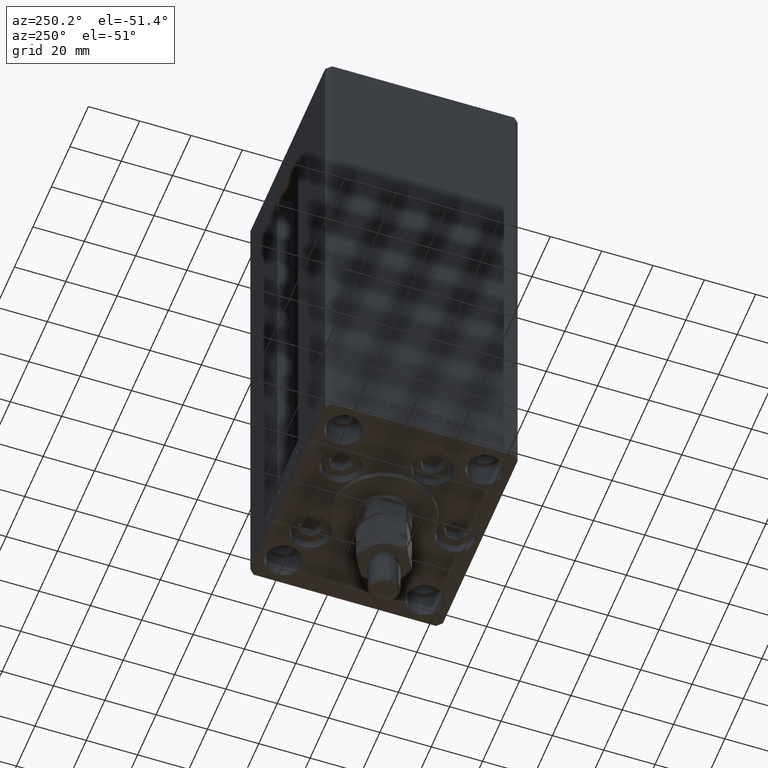
[diagram: clean part render]
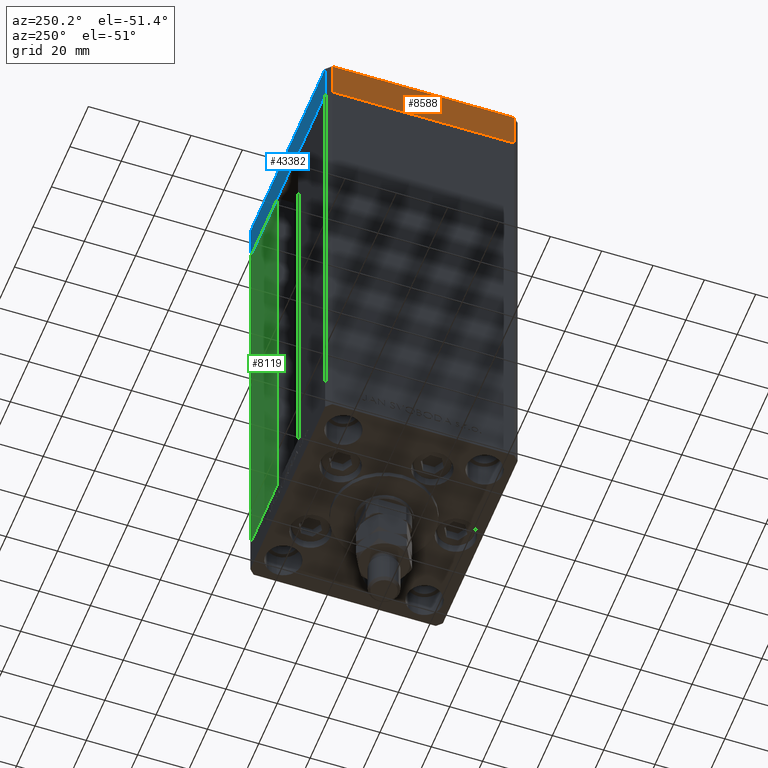
[diagram: same view with three faces highlighted in distinct colors, each labeled with its STEP entity id]
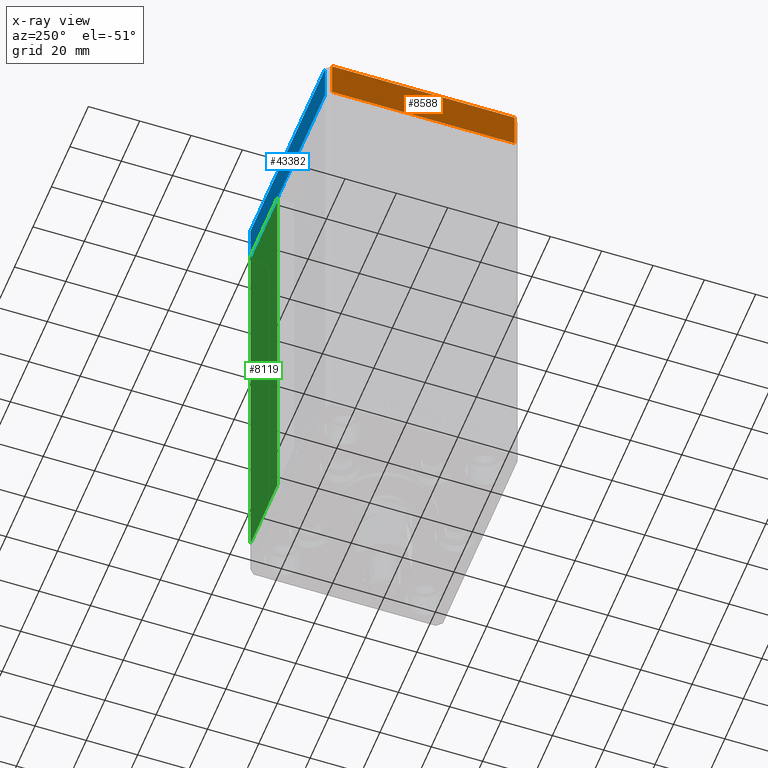
[diagram: x-ray of the same camera — body ghosted, the three highlighted faces saturated]
A machine part, auxiliary view with three faces highlighted in distinct colors.
The next image is the same camera in x-ray (body ghosted, the three faces saturated) — at least one of them is partly hidden behind the body in this view.
Their STEP definitions:

[orange] entity #8588 — the highlighted planar face has unit normal (-1, -0, 0).
#39 = VECTOR ( 'NONE', #34601, 1000.000000000000000 ) ;
#546 = CARTESIAN_POINT ( 'NONE',  ( -42.50000000000000711, 35.49999999999997158, -15.00000000000000000 ) ) ;
#1055 = FACE_OUTER_BOUND ( 'NONE', #21309, .T. ) ;
#1558 = DIRECTION ( 'NONE',  ( 9.773090005503140331E-17, -1.000000000000000000, 0.000000000000000000 ) ) ;
#1777 = CARTESIAN_POINT ( 'NONE',  ( -42.50000000000000000, -35.50000000000000711, 0.000000000000000000 ) ) ;
#2702 = VERTEX_POINT ( 'NONE', #1777 ) ;
#2773 = EDGE_CURVE ( 'NONE', #4040, #2702, #22680, .T. ) ;
#4040 = VERTEX_POINT ( 'NONE', #31318 ) ;
#4749 = EDGE_CURVE ( 'NONE', #29766, #4040, #41495, .T. ) ;
#7673 = VECTOR ( 'NONE', #45445, 1000.000000000000000 ) ;
#8588 = ADVANCED_FACE ( 'NONE', ( #1055 ), #47546, .T. ) ;
#8943 = ORIENTED_EDGE ( 'NONE', *, *, #2773, .F. ) ;
#14240 = DIRECTION ( 'NONE',  ( 0.000000000000000000, 0.000000000000000000, 1.000000000000000000 ) ) ;
#17575 = CARTESIAN_POINT ( 'NONE',  ( -42.50000000000000000, -35.50000000000000711, -15.00000000000000000 ) ) ;
#17828 = LINE ( 'NONE', #17575, #26576 ) ;
#17860 = ORIENTED_EDGE ( 'NONE', *, *, #28439, .T. ) ;
#20284 = ORIENTED_EDGE ( 'NONE', *, *, #4749, .F. ) ;
#21309 = EDGE_LOOP ( 'NONE', ( #8943, #20284, #47860, #17860 ) ) ;
#21537 = EDGE_CURVE ( 'NONE', #29766, #39985, #26692, .T. ) ;
#22680 = LINE ( 'NONE', #38030, #7673 ) ;
#26576 = VECTOR ( 'NONE', #14240, 1000.000000000000000 ) ;
#26692 = LINE ( 'NONE', #50188, #39 ) ;
#28439 = EDGE_CURVE ( 'NONE', #39985, #2702, #17828, .T. ) ;
#29347 = CARTESIAN_POINT ( 'NONE',  ( -42.50000000000000711, 35.49999999999997158, -15.00000000000000000 ) ) ;
#29766 = VERTEX_POINT ( 'NONE', #29347 ) ;
#31318 = CARTESIAN_POINT ( 'NONE',  ( -42.50000000000000711, 35.49999999999997158, 0.000000000000000000 ) ) ;
#34601 = DIRECTION ( 'NONE',  ( 9.773090005503140331E-17, -1.000000000000000000, 0.000000000000000000 ) ) ;
#38004 = AXIS2_PLACEMENT_3D ( 'NONE', #546, #40387, #1558 ) ;
#38030 = CARTESIAN_POINT ( 'NONE',  ( -42.50000000000000711, 35.49999999999997158, 0.000000000000000000 ) ) ;
#39985 = VERTEX_POINT ( 'NONE', #40768 ) ;
#40387 = DIRECTION ( 'NONE',  ( -1.000000000000000000, -9.773090005503140331E-17, 0.000000000000000000 ) ) ;
#40768 = CARTESIAN_POINT ( 'NONE',  ( -42.50000000000000000, -35.50000000000000711, -15.00000000000000000 ) ) ;
#41244 = DIRECTION ( 'NONE',  ( 0.000000000000000000, 0.000000000000000000, 1.000000000000000000 ) ) ;
#41495 = LINE ( 'NONE', #49423, #45343 ) ;
#45343 = VECTOR ( 'NONE', #41244, 1000.000000000000000 ) ;
#45445 = DIRECTION ( 'NONE',  ( 9.773090005503140331E-17, -1.000000000000000000, 0.000000000000000000 ) ) ;
#47546 = PLANE ( 'NONE',  #38004 ) ;
#47860 = ORIENTED_EDGE ( 'NONE', *, *, #21537, .T. ) ;
#49423 = CARTESIAN_POINT ( 'NONE',  ( -42.50000000000000711, 35.49999999999997158, -15.00000000000000000 ) ) ;
#50188 = CARTESIAN_POINT ( 'NONE',  ( -42.50000000000000711, 35.49999999999997158, -15.00000000000000000 ) ) ;

[blue] entity #43382 — the highlighted planar face has unit normal (-0, 1, 0).
#689 = FACE_OUTER_BOUND ( 'NONE', #47037, .T. ) ;
#1820 = DIRECTION ( 'NONE',  ( 0.000000000000000000, 0.000000000000000000, 1.000000000000000000 ) ) ;
#7057 = VECTOR ( 'NONE', #24320, 1000.000000000000000 ) ;
#8480 = VERTEX_POINT ( 'NONE', #25178 ) ;
#8871 = VECTOR ( 'NONE', #1820, 1000.000000000000000 ) ;
#9650 = ORIENTED_EDGE ( 'NONE', *, *, #14677, .T. ) ;
#10420 = VECTOR ( 'NONE', #36048, 1000.000000000000000 ) ;
#11312 = CARTESIAN_POINT ( 'NONE',  ( 40.49999999999991473, 37.50000000000000711, 0.000000000000000000 ) ) ;
#11580 = EDGE_CURVE ( 'NONE', #33855, #16186, #31497, .T. ) ;
#11666 = DIRECTION ( 'NONE',  ( -1.000000000000000000, -3.426614273534436165E-16, 0.000000000000000000 ) ) ;
#12164 = EDGE_CURVE ( 'NONE', #8480, #16186, #44892, .T. ) ;
#13209 = CARTESIAN_POINT ( 'NONE',  ( -40.50000000000000711, 37.49999999999997868, -15.00000000000000000 ) ) ;
#14677 = EDGE_CURVE ( 'NONE', #46117, #8480, #29411, .T. ) ;
#16186 = VERTEX_POINT ( 'NONE', #27659 ) ;
#20104 = CARTESIAN_POINT ( 'NONE',  ( 40.49999999999991473, 37.50000000000000711, -15.00000000000000000 ) ) ;
#20938 = ORIENTED_EDGE ( 'NONE', *, *, #12164, .T. ) ;
#24320 = DIRECTION ( 'NONE',  ( -1.000000000000000000, -3.426614273534436165E-16, 0.000000000000000000 ) ) ;
#25178 = CARTESIAN_POINT ( 'NONE',  ( -40.50000000000000711, 37.49999999999997868, -15.00000000000000000 ) ) ;
#25565 = LINE ( 'NONE', #36823, #8871 ) ;
#27659 = CARTESIAN_POINT ( 'NONE',  ( -40.50000000000000711, 37.49999999999997868, 0.000000000000000000 ) ) ;
#29411 = LINE ( 'NONE', #44459, #10420 ) ;
#31497 = LINE ( 'NONE', #43470, #7057 ) ;
#32674 = AXIS2_PLACEMENT_3D ( 'NONE', #20104, #35683, #11666 ) ;
#33855 = VERTEX_POINT ( 'NONE', #11312 ) ;
#35584 = EDGE_CURVE ( 'NONE', #46117, #33855, #25565, .T. ) ;
#35683 = DIRECTION ( 'NONE',  ( -3.426614273534436165E-16, 1.000000000000000000, 0.000000000000000000 ) ) ;
#36048 = DIRECTION ( 'NONE',  ( -1.000000000000000000, -3.426614273534436165E-16, 0.000000000000000000 ) ) ;
#36823 = CARTESIAN_POINT ( 'NONE',  ( 40.49999999999991473, 37.50000000000000711, -15.00000000000000000 ) ) ;
#37460 = ORIENTED_EDGE ( 'NONE', *, *, #35584, .F. ) ;
#39767 = PLANE ( 'NONE',  #32674 ) ;
#43382 = ADVANCED_FACE ( 'NONE', ( #689 ), #39767, .T. ) ;
#43470 = CARTESIAN_POINT ( 'NONE',  ( 40.49999999999991473, 37.50000000000000711, 0.000000000000000000 ) ) ;
#44459 = CARTESIAN_POINT ( 'NONE',  ( 40.49999999999991473, 37.50000000000000711, -15.00000000000000000 ) ) ;
#44892 = LINE ( 'NONE', #13209, #48741 ) ;
#45667 = CARTESIAN_POINT ( 'NONE',  ( 40.49999999999991473, 37.50000000000000711, -15.00000000000000000 ) ) ;
#46117 = VERTEX_POINT ( 'NONE', #45667 ) ;
#46601 = ORIENTED_EDGE ( 'NONE', *, *, #11580, .F. ) ;
#47037 = EDGE_LOOP ( 'NONE', ( #46601, #37460, #9650, #20938 ) ) ;
#48741 = VECTOR ( 'NONE', #48991, 1000.000000000000000 ) ;
#48991 = DIRECTION ( 'NONE',  ( 0.000000000000000000, 0.000000000000000000, 1.000000000000000000 ) ) ;

[green] entity #8119 — the highlighted planar face has unit normal (-0, -1, 0).
#214 = PLANE ( 'NONE',  #2088 ) ;
#2088 = AXIS2_PLACEMENT_3D ( 'NONE', #12462, #12716, #46968 ) ;
#2843 = VERTEX_POINT ( 'NONE', #5046 ) ;
#4409 = ORIENTED_EDGE ( 'NONE', *, *, #30416, .T. ) ;
#5046 = CARTESIAN_POINT ( 'NONE',  ( 40.50000000000000000, 37.50000000000000711, 0.000000000000000000 ) ) ;
#8119 = ADVANCED_FACE ( 'NONE', ( #39806 ), #214, .F. ) ;
#8936 = LINE ( 'NONE', #43933, #38899 ) ;
#9994 = DIRECTION ( 'NONE',  ( -0.000000000000000000, -0.000000000000000000, -1.000000000000000000 ) ) ;
#10689 = EDGE_LOOP ( 'NONE', ( #47979, #4409, #43980, #49352 ) ) ;
#10978 = LINE ( 'NONE', #13842, #11197 ) ;
#11197 = VECTOR ( 'NONE', #9994, 1000.000000000000000 ) ;
#12462 = CARTESIAN_POINT ( 'NONE',  ( -11.25000000000000000, 37.50000000000000000, 168.5000000000000000 ) ) ;
#12696 = EDGE_CURVE ( 'NONE', #2843, #24585, #8936, .T. ) ;
#12716 = DIRECTION ( 'NONE',  ( -2.372271420139223331E-16, -1.000000000000000000, 0.000000000000000000 ) ) ;
#13842 = CARTESIAN_POINT ( 'NONE',  ( 40.50000000000000000, 37.50000000000000711, 168.5000000000000000 ) ) ;
#23535 = CARTESIAN_POINT ( 'NONE',  ( 11.24999999999999289, 37.50000000000000000, 168.5000000000000000 ) ) ;
#24005 = VERTEX_POINT ( 'NONE', #23535 ) ;
#24585 = VERTEX_POINT ( 'NONE', #46415 ) ;
#26222 = CARTESIAN_POINT ( 'NONE',  ( -11.25000000000000000, 37.50000000000000000, 168.5000000000000000 ) ) ;
#30416 = EDGE_CURVE ( 'NONE', #24585, #24005, #37584, .T. ) ;
#30706 = VECTOR ( 'NONE', #46224, 1000.000000000000000 ) ;
#32138 = EDGE_CURVE ( 'NONE', #47260, #2843, #10978, .T. ) ;
#34380 = DIRECTION ( 'NONE',  ( 1.000000000000000000, 0.000000000000000000, 0.000000000000000000 ) ) ;
#37201 = CARTESIAN_POINT ( 'NONE',  ( 40.50000000000000000, 37.50000000000000711, 168.5000000000000000 ) ) ;
#37584 = LINE ( 'NONE', #38069, #30706 ) ;
#38069 = CARTESIAN_POINT ( 'NONE',  ( 11.25000000000000000, 37.50000000000000000, 0.000000000000000000 ) ) ;
#38899 = VECTOR ( 'NONE', #39856, 1000.000000000000000 ) ;
#39806 = FACE_OUTER_BOUND ( 'NONE', #10689, .T. ) ;
#39856 = DIRECTION ( 'NONE',  ( -1.000000000000000000, 2.372271420139223331E-16, 0.000000000000000000 ) ) ;
#40055 = VECTOR ( 'NONE', #34380, 1000.000000000000000 ) ;
#43933 = CARTESIAN_POINT ( 'NONE',  ( -11.25000000000000000, 37.50000000000000000, 0.000000000000000000 ) ) ;
#43980 = ORIENTED_EDGE ( 'NONE', *, *, #44302, .T. ) ;
#44302 = EDGE_CURVE ( 'NONE', #24005, #47260, #50201, .T. ) ;
#46224 = DIRECTION ( 'NONE',  ( -0.000000000000000000, -0.000000000000000000, 1.000000000000000000 ) ) ;
#46415 = CARTESIAN_POINT ( 'NONE',  ( 11.25000000000000000, 37.50000000000000000, 0.000000000000000000 ) ) ;
#46968 = DIRECTION ( 'NONE',  ( 1.000000000000000000, -2.372271420139223331E-16, 0.000000000000000000 ) ) ;
#47260 = VERTEX_POINT ( 'NONE', #37201 ) ;
#47979 = ORIENTED_EDGE ( 'NONE', *, *, #12696, .T. ) ;
#49352 = ORIENTED_EDGE ( 'NONE', *, *, #32138, .T. ) ;
#50201 = LINE ( 'NONE', #26222, #40055 ) ;